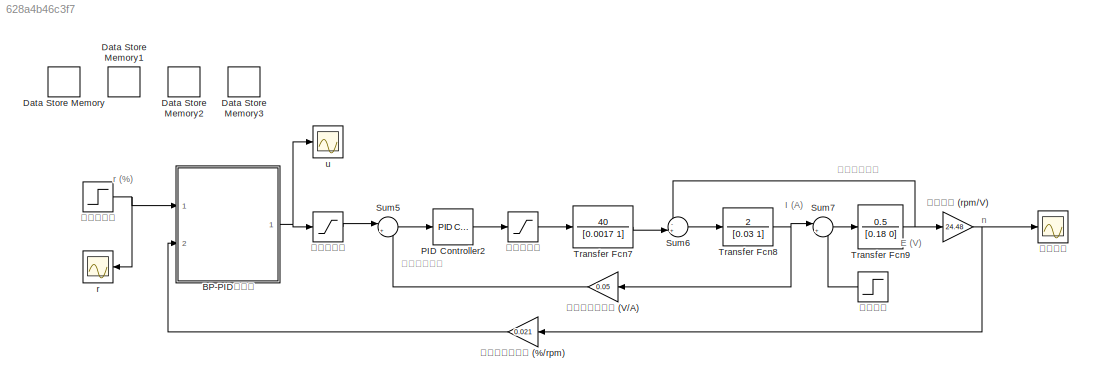
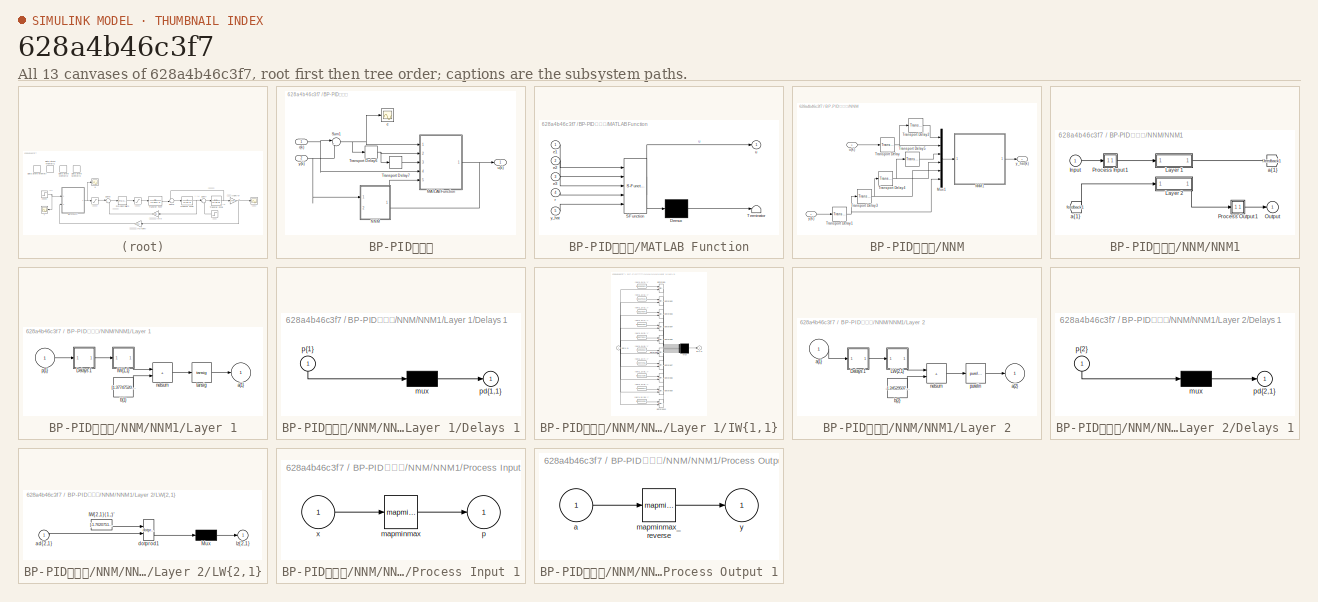
[diagram: thumbnail index - all 13 canvases of the model, root first then tree order]
MODEL slx_628a4b46c3f7
KIND model
CONFIG AbsTol = auto
CONFIG EnableMultiTasking = off
CONFIG FixedStep = 0.001
CONFIG MaxStep = auto
CONFIG MinStep = auto
CONFIG RelTol = 1e-3
CONFIG SampleTimeConstraint = Unconstrained
CONFIG SolverName = FixedStepAuto
CONFIG StartTime = 0.0
CONFIG StopTime = 20
BLOCK [SubSystem] BP-PID控制器
  Ports = [2, 1]
  RequestExecContextInheritance = off
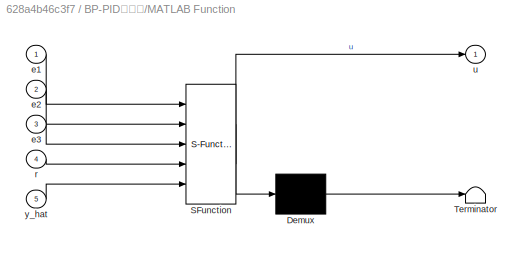
BLOCK [SubSystem] BP-PID控制器/MATLAB Function
  ErrorFcn = Stateflow.Translate.translate
  PermitHierarchicalResolution = ExplicitOnly
  Ports = [5, 1]
  RequestExecContextInheritance = off
  SFBlockType = MATLAB Function
  TreatAsAtomicUnit = on
BLOCK [Demux] BP-PID控制器/MATLAB Function/ Demux 
  Outputs = 1
  Ports = [1, 1]
BLOCK [S-Function] BP-PID控制器/MATLAB Function/ SFunction 
  EnableBusSupport = on
  FunctionName = sf_sfun
  PortCounts = [5 2]
  Ports = [5, 2]
  SFcnIsStateOwnerBlock = off
  SFunctionDeploymentMode = off
  Tag = Stateflow S-Function 2
BLOCK [Terminator] BP-PID控制器/MATLAB Function/ Terminator 
BLOCK [Inport] BP-PID控制器/MATLAB Function/e1
BLOCK [Inport] BP-PID控制器/MATLAB Function/e2
  Port = 2
BLOCK [Inport] BP-PID控制器/MATLAB Function/e3
  Port = 3
BLOCK [Inport] BP-PID控制器/MATLAB Function/r
  Port = 4
BLOCK [Outport] BP-PID控制器/MATLAB Function/u
BLOCK [Inport] BP-PID控制器/MATLAB Function/y_hat
  Port = 5
BLOCK [SubSystem] BP-PID控制器/NNM
  PortSchema = {"entries":[{"content":{"sides":[{"content":{"connectorIds":["In1"]},"type":"ConnectorPlacement.EquallySpacedRectSide","uuid":"a4162ff2-2861-427e-ae28-10b6ca2a23f9"},{"content":{"connectorIds":["In2"],"side":"RIGHT"},"type":"ConnectorPlacement.EquallySpacedRectSide","uuid":"3359eb48-edbc-4734-b045-12c20470e0f6"},{"content":{"connectorIds":["Out1"],"side":"TOP"},"type":"ConnectorPlacement.EquallySp...<+245ch>
  Ports = [2, 1]
  RequestExecContextInheritance = off
BLOCK [Mux] BP-PID控制器/NNM/Mux1
  DisplayOption = bar
  Inputs = 6
  Ports = [6, 1]
BLOCK [SubSystem] BP-PID控制器/NNM/NNM1
  Ports = [1, 1]
  RequestExecContextInheritance = off
BLOCK [From] BP-PID控制器/NNM/NNM1/ a{1} 
  GotoTag = feedback1
BLOCK [Inport] BP-PID控制器/NNM/NNM1/Input
  PortDimensions = 6
BLOCK [SubSystem] BP-PID控制器/NNM/NNM1/Layer 1
  Ports = [1, 1]
  RequestExecContextInheritance = off
BLOCK [SubSystem] BP-PID控制器/NNM/NNM1/Layer 1/Delays 1
  Ports = [1, 1]
  RequestExecContextInheritance = off
BLOCK [Mux] BP-PID控制器/NNM/NNM1/Layer 1/Delays 1/mux
  Inputs = 1
  Ports = [1, 1]
BLOCK [Outport] BP-PID控制器/NNM/NNM1/Layer 1/Delays 1/pd{1,1}
BLOCK [Inport] BP-PID控制器/NNM/NNM1/Layer 1/Delays 1/p{1}
  NameLocation = left
  PortDimensions = 6
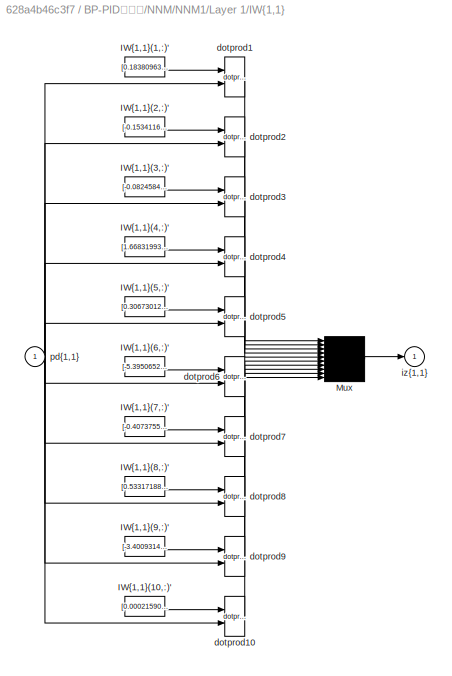
BLOCK [SubSystem] BP-PID控制器/NNM/NNM1/Layer 1/IW{1,1}
  Ports = [1, 1]
  RequestExecContextInheritance = off
BLOCK [Constant] BP-PID控制器/NNM/NNM1/Layer 1/IW{1,1}/IW{1,1}(1,:)'
  Value = [0.1838096377286138893847322606234229169785976409912109375;-3.15579421013018190933507867157459259033203125;-0.67791354529503744519303154447698034346103668212890625;0.29635985233969275309817703600856475532054901123046875;0.270974393550395153962284666704363189637660980224609375;-0.310036219799996681789622243741177953779697418212890625]
BLOCK [Constant] BP-PID控制器/NNM/NNM1/Layer 1/IW{1,1}/IW{1,1}(10,:)'
  Value = [0.00021590411352905217851581853860665205502300523221492767333984375;-1.8659848737274890699035234664648896796279586851596832275390625e-05;-0.05686068009704596526443509674209053628146648406982421875;0.06585893385034098657104806306961108930408954620361328125;0.5449519220738407998538832543999888002872467041015625;-1.108382368426358066670900370809249579906463623046875]
BLOCK [Constant] BP-PID控制器/NNM/NNM1/Layer 1/IW{1,1}/IW{1,1}(2,:)'
  Value = [-0.1534116637579476805086642343667335808277130126953125;-0.275462311413498472933980565358069725334644317626953125;2.134995329278335685074807770433835685253143310546875;1.62640243713937859837415089714340865612030029296875;0.57207556108869261901617164767230860888957977294921875;-0.8306223287731382409759817164740525186061859130859375]
BLOCK [Constant] BP-PID控制器/NNM/NNM1/Layer 1/IW{1,1}/IW{1,1}(3,:)'
  Value = [-0.0824584058286010890270745221641846001148223876953125;0.095173654364331394805986974461120553314685821533203125;-2.017977422440721202434588121832348406314849853515625;-0.1559824769787825637923361909997765906155109405517578125;-0.28107170709127604624200102989561855792999267578125;-0.862675896064874603297312205540947616100311279296875]
BLOCK [Constant] BP-PID控制器/NNM/NNM1/Layer 1/IW{1,1}/IW{1,1}(4,:)'
  Value = [1.668319937560055254976987271220423281192779541015625;-0.95262361336100009889804596241447143256664276123046875;-0.81854692399028150529005642965785227715969085693359375;0.2254295833859405739918457811654661782085895538330078125;0.62178351057837100146485909135662950575351715087890625;-0.39211599795034979276664444114430807530879974365234375]
BLOCK [Constant] BP-PID控制器/NNM/NNM1/Layer 1/IW{1,1}/IW{1,1}(5,:)'
  Value = [0.306730125484918569878090011116000823676586151123046875;1.5678238600400995483852284451131708920001983642578125;2.022841891998255814399954033433459699153900146484375;1.539538489068000171045014212722890079021453857421875;0.5246791923887583752872387776733376085758209228515625;-0.90822211946197217713461213861592113971710205078125]
BLOCK [Constant] BP-PID控制器/NNM/NNM1/Layer 1/IW{1,1}/IW{1,1}(6,:)'
  Value = [-5.3950652607603018554548179874785773790790699422359466552734375e-05;-0.00022357884040252840409691847955997445751563645899295806884765625;-0.2346146953872139395702589581560459919273853302001953125;0.93101147119320304401668408900150097906589508056640625;-1.291922689395514911581130945705808699131011962890625;0.71084631324227454118869218291365541517734527587890625]
BLOCK [Constant] BP-PID控制器/NNM/NNM1/Layer 1/IW{1,1}/IW{1,1}(7,:)'
  Value = [-0.4073755667241261146926945002633146941661834716796875;0.39928559485337522527714781972463242709636688232421875;2.9320832809182508782441800576634705066680908203125;-0.36848591425886911832066061833756975829601287841796875;-0.07902348143153677118011302127342787571251392364501953125;-2.00097538407120989489840212627314031124114990234375]
BLOCK [Constant] BP-PID控制器/NNM/NNM1/Layer 1/IW{1,1}/IW{1,1}(8,:)'
  Value = [0.533171884341801405327032625791616737842559814453125;-0.590580901715991313238873772206716239452362060546875;0.45670431001737321619060594457550905644893646240234375;-0.031294456944853853153087896998840733431279659271240234375;0.0991037477302048885885454865274368785321712493896484375;-0.36047117816851803606681414748891256749629974365234375]
BLOCK [Constant] BP-PID控制器/NNM/NNM1/Layer 1/IW{1,1}/IW{1,1}(9,:)'
  Value = [-3.400931406453667538158924799063242971897125244140625;-1.3888218405155854373589363603969104588031768798828125;1.3742462299686335480686238952330313622951507568359375;0.99134520230014711028587726104888133704662322998046875;-0.594210345277422558041280353791080415248870849609375;-0.016624873323222509602370422499006963334977626800537109375]
BLOCK [Mux] BP-PID控制器/NNM/NNM1/Layer 1/IW{1,1}/Mux
  Inputs = 10
  Ports = [10, 1]
BLOCK [Reference] BP-PID控制器/NNM/NNM1/Layer 1/IW{1,1}/dotprod1  REF=neural/Weight Functions/dotprod
  Ports = [2, 1]
  SourceBlock = neural/Weight Functions/dotprod
  SourceProductBaseCode = NN
  SourceType = DOTPROD
BLOCK [Reference] BP-PID控制器/NNM/NNM1/Layer 1/IW{1,1}/dotprod10  REF=neural/Weight Functions/dotprod
  Ports = [2, 1]
  SourceBlock = neural/Weight Functions/dotprod
  SourceProductBaseCode = NN
  SourceType = DOTPROD
BLOCK [Reference] BP-PID控制器/NNM/NNM1/Layer 1/IW{1,1}/dotprod2  REF=neural/Weight Functions/dotprod
  Ports = [2, 1]
  SourceBlock = neural/Weight Functions/dotprod
  SourceProductBaseCode = NN
  SourceType = DOTPROD
BLOCK [Reference] BP-PID控制器/NNM/NNM1/Layer 1/IW{1,1}/dotprod3  REF=neural/Weight Functions/dotprod
  Ports = [2, 1]
  SourceBlock = neural/Weight Functions/dotprod
  SourceProductBaseCode = NN
  SourceType = DOTPROD
BLOCK [Reference] BP-PID控制器/NNM/NNM1/Layer 1/IW{1,1}/dotprod4  REF=neural/Weight Functions/dotprod
  Ports = [2, 1]
  SourceBlock = neural/Weight Functions/dotprod
  SourceProductBaseCode = NN
  SourceType = DOTPROD
BLOCK [Reference] BP-PID控制器/NNM/NNM1/Layer 1/IW{1,1}/dotprod5  REF=neural/Weight Functions/dotprod
  Ports = [2, 1]
  SourceBlock = neural/Weight Functions/dotprod
  SourceProductBaseCode = NN
  SourceType = DOTPROD
BLOCK [Reference] BP-PID控制器/NNM/NNM1/Layer 1/IW{1,1}/dotprod6  REF=neural/Weight Functions/dotprod
  Ports = [2, 1]
  SourceBlock = neural/Weight Functions/dotprod
  SourceProductBaseCode = NN
  SourceType = DOTPROD
BLOCK [Reference] BP-PID控制器/NNM/NNM1/Layer 1/IW{1,1}/dotprod7  REF=neural/Weight Functions/dotprod
  Ports = [2, 1]
  SourceBlock = neural/Weight Functions/dotprod
  SourceProductBaseCode = NN
  SourceType = DOTPROD
BLOCK [Reference] BP-PID控制器/NNM/NNM1/Layer 1/IW{1,1}/dotprod8  REF=neural/Weight Functions/dotprod
  Ports = [2, 1]
  SourceBlock = neural/Weight Functions/dotprod
  SourceProductBaseCode = NN
  SourceType = DOTPROD
BLOCK [Reference] BP-PID控制器/NNM/NNM1/Layer 1/IW{1,1}/dotprod9  REF=neural/Weight Functions/dotprod
  Ports = [2, 1]
  SourceBlock = neural/Weight Functions/dotprod
  SourceProductBaseCode = NN
  SourceType = DOTPROD
BLOCK [Outport] BP-PID控制器/NNM/NNM1/Layer 1/IW{1,1}/iz{1,1}
BLOCK [Inport] BP-PID控制器/NNM/NNM1/Layer 1/IW{1,1}/pd{1,1}
  PortDimensions = 6
BLOCK [Outport] BP-PID控制器/NNM/NNM1/Layer 1/a{1}
  InitialOutput = [0;0;0;0;0;0;0;0;0;0]
BLOCK [Constant] BP-PID控制器/NNM/NNM1/Layer 1/b{1}
  Value = [1.3774752068035642782461991373565979301929473876953125;-2.798759364443794250831842873594723641872406005859375;-1.8749346256959551482168535585515201091766357421875;-0.332333400951221047403549846421810798346996307373046875;-0.31168720514540415589266331153339706361293792724609375;0.169862263088659315446449227238190360367298126220703125;-0.424930506146499187281051490572281181812286376953125;0.3263696...<+157ch>
BLOCK [Sum] BP-PID控制器/NNM/NNM1/Layer 1/netsum
  IconShape = rectangular
  InputSameDT = on
  Inputs = 2
  OutDataTypeStr = Inherit: Same as first input
  Ports = [2, 1]
  SaturateOnIntegerOverflow = on
BLOCK [Inport] BP-PID控制器/NNM/NNM1/Layer 1/p{1}
  PortDimensions = 6
BLOCK [Reference] BP-PID控制器/NNM/NNM1/Layer 1/tansig  REF=neural/Transfer Functions/tansig
  Ports = [1, 1]
  SourceBlock = neural/Transfer Functions/tansig
  SourceProductBaseCode = NN
  SourceType = TANSIG
BLOCK [SubSystem] BP-PID控制器/NNM/NNM1/Layer 2
  Ports = [1, 1]
  RequestExecContextInheritance = off
BLOCK [SubSystem] BP-PID控制器/NNM/NNM1/Layer 2/Delays 1
  Ports = [1, 1]
  RequestExecContextInheritance = off
BLOCK [Mux] BP-PID控制器/NNM/NNM1/Layer 2/Delays 1/mux
  Inputs = 1
  Ports = [1, 1]
BLOCK [Outport] BP-PID控制器/NNM/NNM1/Layer 2/Delays 1/pd{2,1}
BLOCK [Inport] BP-PID控制器/NNM/NNM1/Layer 2/Delays 1/p{2}
  NameLocation = left
  PortDimensions = 10
BLOCK [SubSystem] BP-PID控制器/NNM/NNM1/Layer 2/LW{2,1}
  Ports = [1, 1]
  RequestExecContextInheritance = off
BLOCK [Constant] BP-PID控制器/NNM/NNM1/Layer 2/LW{2,1}/IW{2,1}(1,:)'
  Value = [-1.762075150446483026524572244875255222495979978702962398529052734375e-06;-0.000168789400059920114034739402342211178620345890522003173828125;0.000117871996279831755464855003179280856784316711127758026123046875;6.77218442393944346766911090984564225436770357191562652587890625e-06;1.762664195838122908042457093191757167005562223494052886962890625e-05;8.567844490471829388411606487352401018142700195312...<+273ch>
BLOCK [Mux] BP-PID控制器/NNM/NNM1/Layer 2/LW{2,1}/Mux
  Inputs = 1
  Ports = [1, 1]
BLOCK [Inport] BP-PID控制器/NNM/NNM1/Layer 2/LW{2,1}/ad{2,1}
  PortDimensions = 10
BLOCK [Reference] BP-PID控制器/NNM/NNM1/Layer 2/LW{2,1}/dotprod1  REF=neural/Weight Functions/dotprod
  Ports = [2, 1]
  SourceBlock = neural/Weight Functions/dotprod
  SourceProductBaseCode = NN
  SourceType = DOTPROD
BLOCK [Outport] BP-PID控制器/NNM/NNM1/Layer 2/LW{2,1}/lz{2,1}
BLOCK [Inport] BP-PID控制器/NNM/NNM1/Layer 2/a{1} 
  PortDimensions = 10
BLOCK [Outport] BP-PID控制器/NNM/NNM1/Layer 2/a{2}
  InitialOutput = 0
BLOCK [Constant] BP-PID控制器/NNM/NNM1/Layer 2/b{2}
  Value = -1.2452950732195862126872043518233112990856170654296875
BLOCK [Sum] BP-PID控制器/NNM/NNM1/Layer 2/netsum
  IconShape = rectangular
  InputSameDT = on
  Inputs = 2
  OutDataTypeStr = Inherit: Same as first input
  Ports = [2, 1]
  SaturateOnIntegerOverflow = on
BLOCK [Reference] BP-PID控制器/NNM/NNM1/Layer 2/purelin  REF=neural/Transfer Functions/purelin
  Ports = [1, 1]
  SourceBlock = neural/Transfer Functions/purelin
  SourceProductBaseCode = NN
  SourceType = PURELIN
BLOCK [Outport] BP-PID控制器/NNM/NNM1/Output
  InitialOutput = 0
BLOCK [SubSystem] BP-PID控制器/NNM/NNM1/Process Input 1
  Ports = [1, 1]
  RequestExecContextInheritance = off
BLOCK [Reference] BP-PID控制器/NNM/NNM1/Process Input 1/mapminmax  REF=neural/Processing Functions/mapminmax
  Ports = [1, 1]
  SourceBlock = neural/Processing Functions/mapminmax
  SourceProductBaseCode = NN
  SourceType = MAPMINMAX Preprocess
BLOCK [Outport] BP-PID控制器/NNM/NNM1/Process Input 1/p
  PortDimensions = 6
BLOCK [Inport] BP-PID控制器/NNM/NNM1/Process Input 1/x
  PortDimensions = 6
BLOCK [SubSystem] BP-PID控制器/NNM/NNM1/Process Output 1
  Ports = [1, 1]
  RequestExecContextInheritance = off
BLOCK [Inport] BP-PID控制器/NNM/NNM1/Process Output 1/a
  PortDimensions = 1
BLOCK [Reference] BP-PID控制器/NNM/NNM1/Process Output 1/mapminmax_reverse  REF=neural/Processing Functions/mapminmax_reverse
  Ports = [1, 1]
  SourceBlock = neural/Processing Functions/mapminmax_reverse
  SourceProductBaseCode = NN
  SourceType = MAPMINMAX Reverse Process
BLOCK [Outport] BP-PID控制器/NNM/NNM1/Process Output 1/y
  PortDimensions = 1
BLOCK [Goto] BP-PID控制器/NNM/NNM1/a{1}
  GotoTag = feedback1
BLOCK [TransportDelay] BP-PID控制器/NNM/Transport Delay
  DelayTime = 0.003
  Ports = [1, 1]
BLOCK [TransportDelay] BP-PID控制器/NNM/Transport Delay1
  DelayTime = 0.001
  Ports = [1, 1]
BLOCK [TransportDelay] BP-PID控制器/NNM/Transport Delay2
  DelayTime = 0.001
  Ports = [1, 1]
BLOCK [TransportDelay] BP-PID控制器/NNM/Transport Delay3
  DelayTime = 0.001
  Ports = [1, 1]
BLOCK [TransportDelay] BP-PID控制器/NNM/Transport Delay4
  DelayTime = 0.001
  Ports = [1, 1]
BLOCK [TransportDelay] BP-PID控制器/NNM/Transport Delay5
  DelayTime = 0.001
  Ports = [1, 1]
BLOCK [Inport] BP-PID控制器/NNM/u(k)
  Port = 2
BLOCK [Inport] BP-PID控制器/NNM/y(k)
BLOCK [Outport] BP-PID控制器/NNM/y_hat(k)
BLOCK [Sum] BP-PID控制器/Sum1
  Inputs = |+-
  Ports = [2, 1]
BLOCK [TransportDelay] BP-PID控制器/Transport Delay6
  DelayTime = 0.001
  Ports = [1, 1]
BLOCK [TransportDelay] BP-PID控制器/Transport Delay7
  DelayTime = 0.001
  Ports = [1, 1]
BLOCK [Scope] BP-PID控制器/e
  Floating = off
  NumInputPorts = 1
  Ports = [1]
  ScopeSpecificationString = Simulink.scopes.TimeScopeBlockCfg('CurrentConfiguration', extmgr.ConfigurationSet(extmgr.Configuration('Core','General UI',true),extmgr.Configuration('Core','Source UI',true),extmgr.Configuration('Sources','WiredSimulink',true,'DataLoggingVariableName','ScopeData2'),extmgr.Configuration('Visuals','Time Domain',true,'SerializedDisplays',{struct('MinYLimReal','-1.25','MaxYLimReal','11.25','YLabelRea...<+1378ch>
BLOCK [Inport] BP-PID控制器/r(k)
BLOCK [Outport] BP-PID控制器/u(k)
BLOCK [Inport] BP-PID控制器/y(k)
  Port = 2
BLOCK [DataStoreMemory] Data Store Memory
  DataLogging = on
  DataStoreName = Wi1
  InitialValue = Wi1_init
  OutDataTypeStr = double
  ReadBeforeWriteMsg = warning
  ShowAdditionalParam = off
  SignalType = real
  WriteAfterReadMsg = warning
  WriteAfterWriteMsg = warning
BLOCK [DataStoreMemory] Data Store Memory1
  DataLogging = on
  DataStoreName = Wi2
  InitialValue = Wi2_init
  OutDataTypeStr = double
  ReadBeforeWriteMsg = warning
  ShowAdditionalParam = off
  SignalType = real
  WriteAfterReadMsg = warning
  WriteAfterWriteMsg = warning
BLOCK [DataStoreMemory] Data Store Memory2
  DataLogging = on
  DataStoreName = Wo1
  InitialValue = Wo1_init
  OutDataTypeStr = double
  ReadBeforeWriteMsg = warning
  ShowAdditionalParam = off
  SignalType = real
  WriteAfterReadMsg = warning
  WriteAfterWriteMsg = warning
BLOCK [DataStoreMemory] Data Store Memory3
  DataLogging = on
  DataStoreName = Wo2
  InitialValue = Wo2_init
  OutDataTypeStr = double
  ReadBeforeWriteMsg = warning
  ShowAdditionalParam = off
  SignalType = real
  WriteAfterReadMsg = warning
  WriteAfterWriteMsg = warning
BLOCK [Reference] PID Controller2  REF=pid_lib/PID Controller
  Ports = [1, 1]
  SourceBlock = pid_lib/PID Controller
  SourceProductBaseCode = SL
  SourceType = PID 1dof
BLOCK [Sum] Sum5
  Inputs = |+-
  Ports = [2, 1]
BLOCK [Sum] Sum6
  Inputs = -+|
  Ports = [2, 1]
BLOCK [Sum] Sum7
  Inputs = |+-
  Ports = [2, 1]
BLOCK [TransferFcn] Transfer Fcn7
  Denominator = [0.0017 1]
  Numerator = 40
BLOCK [TransferFcn] Transfer Fcn8
  Denominator = [0.03 1]
  Numerator = 2
BLOCK [TransferFcn] Transfer Fcn9
  Denominator = [0.18 0]
  Numerator = 0.5
BLOCK [Scope] r
  Floating = off
  NumInputPorts = 1
  Ports = [1]
  ScopeSpecificationString = Simulink.scopes.TimeScopeBlockCfg('CurrentConfiguration', extmgr.ConfigurationSet(extmgr.Configuration('Core','General UI',true),extmgr.Configuration('Core','Source UI',true),extmgr.Configuration('Sources','WiredSimulink',true),extmgr.Configuration('Visuals','Time Domain',true,'SerializedDisplays',{struct('MinYLimReal','176.78741','MaxYLimReal','213.70889','YLabelReal','','MinYLimMag','176.78741',...<+1412ch>
BLOCK [Scope] u
  Floating = off
  NumInputPorts = 1
  Ports = [1]
  ScopeSpecificationString = Simulink.scopes.TimeScopeBlockCfg('CurrentConfiguration', extmgr.ConfigurationSet(extmgr.Configuration('Core','General UI',true),extmgr.Configuration('Core','Source UI',true),extmgr.Configuration('Sources','WiredSimulink',true,'DataLoggingVariableName','ScopeData1'),extmgr.Configuration('Visuals','Time Domain',true,'SerializedDisplays',{struct('MinYLimReal','5.68854','MaxYLimReal','17.86736','YLab...<+1443ch>
BLOCK [Scope] 实际转速
  Floating = off
  NumInputPorts = 1
  Ports = [1]
  ScopeSpecificationString = Simulink.scopes.TimeScopeBlockCfg('CurrentConfiguration', extmgr.ConfigurationSet(extmgr.Configuration('Core','General UI',true),extmgr.Configuration('Core','Source UI',true),extmgr.Configuration('Sources','WiredSimulink',true,'DataLoggingVariableName','ScopeData9'),extmgr.Configuration('Visuals','Time Domain',true,'SerializedDisplays',{struct('MinYLimReal','-38.31495','MaxYLimReal','572.49651','Y...<+1455ch>
BLOCK [Gain] 电势常数 (rpm//V)
  Gain = 24.48
BLOCK [Gain] 电流环测量变送 (V//A)
  Gain = 0.05
BLOCK [Saturate] 电流环限幅
  LowerLimit = -50
  UpperLimit = 50
BLOCK [Step] 负载电流
  After = 0
  SampleTime = 0
  Time = 3
BLOCK [Gain] 速度环测量变送 (%//rpm)
  Gain = 0.021
BLOCK [Saturate] 速度环限幅
  LowerLimit = -50
  UpperLimit = 50
BLOCK [Step] 遥控器信号
  After = 10
  SampleTime = 0.001
ANNOTATION (root): 电枢反电动势
ANNOTATION (root): E (V)
ANNOTATION (root): I (A)
ANNOTATION (root): n
ANNOTATION (root): r (%)
ANNOTATION (root): 电流环控制器
NET BP-PID控制器/MATLAB Function:1 -> BP-PID控制器/NNM:2, BP-PID控制器/u(k):1
LINE BP-PID控制器/NNM/Mux1:1 -> BP-PID控制器/NNM/NNM1:1
LINE BP-PID控制器/NNM/NNM1/ a{1} :1 -> BP-PID控制器/NNM/NNM1/Layer 2:1
LINE BP-PID控制器/NNM/NNM1/Input:1 -> BP-PID控制器/NNM/NNM1/Process Input 1:1
LINE BP-PID控制器/NNM/NNM1/Layer 1/Delays 1/mux:1 -> BP-PID控制器/NNM/NNM1/Layer 1/Delays 1/pd{1,1}:1
LINE BP-PID控制器/NNM/NNM1/Layer 1/Delays 1/p{1}:1 -> BP-PID控制器/NNM/NNM1/Layer 1/Delays 1/mux:1
LINE BP-PID控制器/NNM/NNM1/Layer 1/Delays 1:1 -> BP-PID控制器/NNM/NNM1/Layer 1/IW{1,1}:1
LINE BP-PID控制器/NNM/NNM1/Layer 1/IW{1,1}/IW{1,1}(1,:)':1 -> BP-PID控制器/NNM/NNM1/Layer 1/IW{1,1}/dotprod1:1
LINE BP-PID控制器/NNM/NNM1/Layer 1/IW{1,1}/IW{1,1}(10,:)':1 -> BP-PID控制器/NNM/NNM1/Layer 1/IW{1,1}/dotprod10:1
LINE BP-PID控制器/NNM/NNM1/Layer 1/IW{1,1}/IW{1,1}(2,:)':1 -> BP-PID控制器/NNM/NNM1/Layer 1/IW{1,1}/dotprod2:1
LINE BP-PID控制器/NNM/NNM1/Layer 1/IW{1,1}/IW{1,1}(3,:)':1 -> BP-PID控制器/NNM/NNM1/Layer 1/IW{1,1}/dotprod3:1
LINE BP-PID控制器/NNM/NNM1/Layer 1/IW{1,1}/IW{1,1}(4,:)':1 -> BP-PID控制器/NNM/NNM1/Layer 1/IW{1,1}/dotprod4:1
LINE BP-PID控制器/NNM/NNM1/Layer 1/IW{1,1}/IW{1,1}(5,:)':1 -> BP-PID控制器/NNM/NNM1/Layer 1/IW{1,1}/dotprod5:1
LINE BP-PID控制器/NNM/NNM1/Layer 1/IW{1,1}/IW{1,1}(6,:)':1 -> BP-PID控制器/NNM/NNM1/Layer 1/IW{1,1}/dotprod6:1
LINE BP-PID控制器/NNM/NNM1/Layer 1/IW{1,1}/IW{1,1}(7,:)':1 -> BP-PID控制器/NNM/NNM1/Layer 1/IW{1,1}/dotprod7:1
LINE BP-PID控制器/NNM/NNM1/Layer 1/IW{1,1}/IW{1,1}(8,:)':1 -> BP-PID控制器/NNM/NNM1/Layer 1/IW{1,1}/dotprod8:1
LINE BP-PID控制器/NNM/NNM1/Layer 1/IW{1,1}/IW{1,1}(9,:)':1 -> BP-PID控制器/NNM/NNM1/Layer 1/IW{1,1}/dotprod9:1
LINE BP-PID控制器/NNM/NNM1/Layer 1/IW{1,1}/Mux:1 -> BP-PID控制器/NNM/NNM1/Layer 1/IW{1,1}/iz{1,1}:1
LINE BP-PID控制器/NNM/NNM1/Layer 1/IW{1,1}/dotprod10:1 -> BP-PID控制器/NNM/NNM1/Layer 1/IW{1,1}/Mux:10
LINE BP-PID控制器/NNM/NNM1/Layer 1/IW{1,1}/dotprod1:1 -> BP-PID控制器/NNM/NNM1/Layer 1/IW{1,1}/Mux:1
LINE BP-PID控制器/NNM/NNM1/Layer 1/IW{1,1}/dotprod2:1 -> BP-PID控制器/NNM/NNM1/Layer 1/IW{1,1}/Mux:2
LINE BP-PID控制器/NNM/NNM1/Layer 1/IW{1,1}/dotprod3:1 -> BP-PID控制器/NNM/NNM1/Layer 1/IW{1,1}/Mux:3
LINE BP-PID控制器/NNM/NNM1/Layer 1/IW{1,1}/dotprod4:1 -> BP-PID控制器/NNM/NNM1/Layer 1/IW{1,1}/Mux:4
LINE BP-PID控制器/NNM/NNM1/Layer 1/IW{1,1}/dotprod5:1 -> BP-PID控制器/NNM/NNM1/Layer 1/IW{1,1}/Mux:5
LINE BP-PID控制器/NNM/NNM1/Layer 1/IW{1,1}/dotprod6:1 -> BP-PID控制器/NNM/NNM1/Layer 1/IW{1,1}/Mux:6
LINE BP-PID控制器/NNM/NNM1/Layer 1/IW{1,1}/dotprod7:1 -> BP-PID控制器/NNM/NNM1/Layer 1/IW{1,1}/Mux:7
LINE BP-PID控制器/NNM/NNM1/Layer 1/IW{1,1}/dotprod8:1 -> BP-PID控制器/NNM/NNM1/Layer 1/IW{1,1}/Mux:8
LINE BP-PID控制器/NNM/NNM1/Layer 1/IW{1,1}/dotprod9:1 -> BP-PID控制器/NNM/NNM1/Layer 1/IW{1,1}/Mux:9
NET BP-PID控制器/NNM/NNM1/Layer 1/IW{1,1}/pd{1,1}:1 -> BP-PID控制器/NNM/NNM1/Layer 1/IW{1,1}/dotprod10:2, BP-PID控制器/NNM/NNM1/Layer 1/IW{1,1}/dotprod1:2, BP-PID控制器/NNM/NNM1/Layer 1/IW{1,1}/dotprod2:2, BP-PID控制器/NNM/NNM1/Layer 1/IW{1,1}/dotprod3:2, BP-PID控制器/NNM/NNM1/Layer 1/IW{1,1}/dotprod4:2, BP-PID控制器/NNM/NNM1/Layer 1/IW{1,1}/dotprod5:2, BP-PID控制器/NNM/NNM1/Layer 1/IW{1,1}/dotprod6:2, BP-PID控制器/NNM/NNM1/Layer 1/IW{1,1}/dotprod7:2, BP-PID控制器/NNM/NNM1/Layer 1/IW{1,1}/dotprod8:2, BP-PID控制器/NNM/NNM1/Layer 1/IW{1,1}/dotprod9:2
LINE BP-PID控制器/NNM/NNM1/Layer 1/IW{1,1}:1 -> BP-PID控制器/NNM/NNM1/Layer 1/netsum:1
LINE BP-PID控制器/NNM/NNM1/Layer 1/b{1}:1 -> BP-PID控制器/NNM/NNM1/Layer 1/netsum:2
LINE BP-PID控制器/NNM/NNM1/Layer 1/netsum:1 -> BP-PID控制器/NNM/NNM1/Layer 1/tansig:1
LINE BP-PID控制器/NNM/NNM1/Layer 1/p{1}:1 -> BP-PID控制器/NNM/NNM1/Layer 1/Delays 1:1
LINE BP-PID控制器/NNM/NNM1/Layer 1/tansig:1 -> BP-PID控制器/NNM/NNM1/Layer 1/a{1}:1
LINE BP-PID控制器/NNM/NNM1/Layer 1:1 -> BP-PID控制器/NNM/NNM1/a{1}:1
LINE BP-PID控制器/NNM/NNM1/Layer 2/Delays 1/mux:1 -> BP-PID控制器/NNM/NNM1/Layer 2/Delays 1/pd{2,1}:1
LINE BP-PID控制器/NNM/NNM1/Layer 2/Delays 1/p{2}:1 -> BP-PID控制器/NNM/NNM1/Layer 2/Delays 1/mux:1
LINE BP-PID控制器/NNM/NNM1/Layer 2/Delays 1:1 -> BP-PID控制器/NNM/NNM1/Layer 2/LW{2,1}:1
LINE BP-PID控制器/NNM/NNM1/Layer 2/LW{2,1}/IW{2,1}(1,:)':1 -> BP-PID控制器/NNM/NNM1/Layer 2/LW{2,1}/dotprod1:1
LINE BP-PID控制器/NNM/NNM1/Layer 2/LW{2,1}/Mux:1 -> BP-PID控制器/NNM/NNM1/Layer 2/LW{2,1}/lz{2,1}:1
LINE BP-PID控制器/NNM/NNM1/Layer 2/LW{2,1}/ad{2,1}:1 -> BP-PID控制器/NNM/NNM1/Layer 2/LW{2,1}/dotprod1:2
LINE BP-PID控制器/NNM/NNM1/Layer 2/LW{2,1}/dotprod1:1 -> BP-PID控制器/NNM/NNM1/Layer 2/LW{2,1}/Mux:1
LINE BP-PID控制器/NNM/NNM1/Layer 2/LW{2,1}:1 -> BP-PID控制器/NNM/NNM1/Layer 2/netsum:1
LINE BP-PID控制器/NNM/NNM1/Layer 2/a{1} :1 -> BP-PID控制器/NNM/NNM1/Layer 2/Delays 1:1
LINE BP-PID控制器/NNM/NNM1/Layer 2/b{2}:1 -> BP-PID控制器/NNM/NNM1/Layer 2/netsum:2
LINE BP-PID控制器/NNM/NNM1/Layer 2/netsum:1 -> BP-PID控制器/NNM/NNM1/Layer 2/purelin:1
LINE BP-PID控制器/NNM/NNM1/Layer 2/purelin:1 -> BP-PID控制器/NNM/NNM1/Layer 2/a{2}:1
LINE BP-PID控制器/NNM/NNM1/Layer 2:1 -> BP-PID控制器/NNM/NNM1/Process Output 1:1
LINE BP-PID控制器/NNM/NNM1/Process Input 1/mapminmax:1 -> BP-PID控制器/NNM/NNM1/Process Input 1/p:1
LINE BP-PID控制器/NNM/NNM1/Process Input 1/x:1 -> BP-PID控制器/NNM/NNM1/Process Input 1/mapminmax:1
LINE BP-PID控制器/NNM/NNM1/Process Input 1:1 -> BP-PID控制器/NNM/NNM1/Layer 1:1
LINE BP-PID控制器/NNM/NNM1/Process Output 1/a:1 -> BP-PID控制器/NNM/NNM1/Process Output 1/mapminmax_reverse:1
LINE BP-PID控制器/NNM/NNM1/Process Output 1/mapminmax_reverse:1 -> BP-PID控制器/NNM/NNM1/Process Output 1/y:1
LINE BP-PID控制器/NNM/NNM1/Process Output 1:1 -> BP-PID控制器/NNM/NNM1/Output:1
LINE BP-PID控制器/NNM/NNM1:1 -> BP-PID控制器/NNM/y_hat(k):1
NET BP-PID控制器/NNM/Transport Delay1:1 -> BP-PID控制器/NNM/Mux1:6, BP-PID控制器/NNM/Transport Delay3:1
LINE BP-PID控制器/NNM/Transport Delay2:1 -> BP-PID控制器/NNM/Mux1:1
NET BP-PID控制器/NNM/Transport Delay3:1 -> BP-PID控制器/NNM/Mux1:5, BP-PID控制器/NNM/Transport Delay4:1
NET BP-PID控制器/NNM/Transport Delay4:1 -> BP-PID控制器/NNM/Mux1:4, BP-PID控制器/NNM/Transport Delay5:1
LINE BP-PID控制器/NNM/Transport Delay5:1 -> BP-PID控制器/NNM/Mux1:3
NET BP-PID控制器/NNM/Transport Delay:1 -> BP-PID控制器/NNM/Mux1:2, BP-PID控制器/NNM/Transport Delay2:1
LINE BP-PID控制器/NNM/u(k):1 -> BP-PID控制器/NNM/Transport Delay:1
LINE BP-PID控制器/NNM/y(k):1 -> BP-PID控制器/NNM/Transport Delay1:1
LINE BP-PID控制器/NNM:1 -> BP-PID控制器/MATLAB Function:5
NET BP-PID控制器/Sum1:1 -> BP-PID控制器/MATLAB Function:1, BP-PID控制器/Transport Delay6:1, BP-PID控制器/e:1
NET BP-PID控制器/Transport Delay6:1 -> BP-PID控制器/MATLAB Function:2, BP-PID控制器/Transport Delay7:1
LINE BP-PID控制器/Transport Delay7:1 -> BP-PID控制器/MATLAB Function:3
NET BP-PID控制器/r(k):1 -> BP-PID控制器/MATLAB Function:4, BP-PID控制器/Sum1:1
NET BP-PID控制器/y(k):1 -> BP-PID控制器/NNM:1, BP-PID控制器/Sum1:2
NET BP-PID控制器:1 -> u:1, 速度环限幅:1
LINE PID Controller2:1 -> 电流环限幅:1
LINE Sum5:1 -> PID Controller2:1
LINE Sum6:1 -> Transfer Fcn8:1
LINE Sum7:1 -> Transfer Fcn9:1
LINE Transfer Fcn7:1 -> Sum6:2
NET Transfer Fcn8:1 -> Sum7:1, 电流环测量变送 (V//A):1
NET Transfer Fcn9:1 -> Sum6:1, 电势常数 (rpm//V):1
NET 电势常数 (rpm//V):1 -> 实际转速:1, 速度环测量变送 (%//rpm):1
LINE 电流环测量变送 (V//A):1 -> Sum5:2
LINE 电流环限幅:1 -> Transfer Fcn7:1
LINE 负载电流:1 -> Sum7:2
LINE 速度环测量变送 (%//rpm):1 -> BP-PID控制器:2
LINE 速度环限幅:1 -> Sum5:1
NET 遥控器信号:1 -> BP-PID控制器:1, r:1
note: NET lines group one-source signal fan-out (src -> all destinations, sorted); 1:1 wires keep LINE
CHART BP-PID控制器/MATLAB Function states=1 transitions=1
  STATE_LABEL 'eML_blk_kernel()'
  STATE_LABEL "SCRIPT:\nfunction u  = BP_PID(e1, e2, e3, r, y_hat)\n% input: e(k), e(k-1), e(k-2), r(k), y(k+1)\n% output: u(k)\n\n% 上一时刻和当前时刻的网络权重\nglobal Wi1 Wi2 Wo1 Wo2\n% 冲量项\nalpha = 0.5;\n% 学习率\nlr = 0.01;\n\n% 输入层\nX = [e1 e2 e3];\n% 隐藏层 RELU 作激活函数\nH = max(0, X * Wi1);\n% 输出层无激活函数\nu = H * Wo1;\n\n% 链式求导法则\nJ = 0.5 * (r-y_hat) ^ 2;\nJ_dy = y_hat - r;\ny_du = sign(y_hat / u);\nu_dWo = H';\nu_dH = Wo1';\nH_dWi = (X > 0)';\n\n% 损失函数对...<+252ch>"
CHART  states=0 transitions=0
